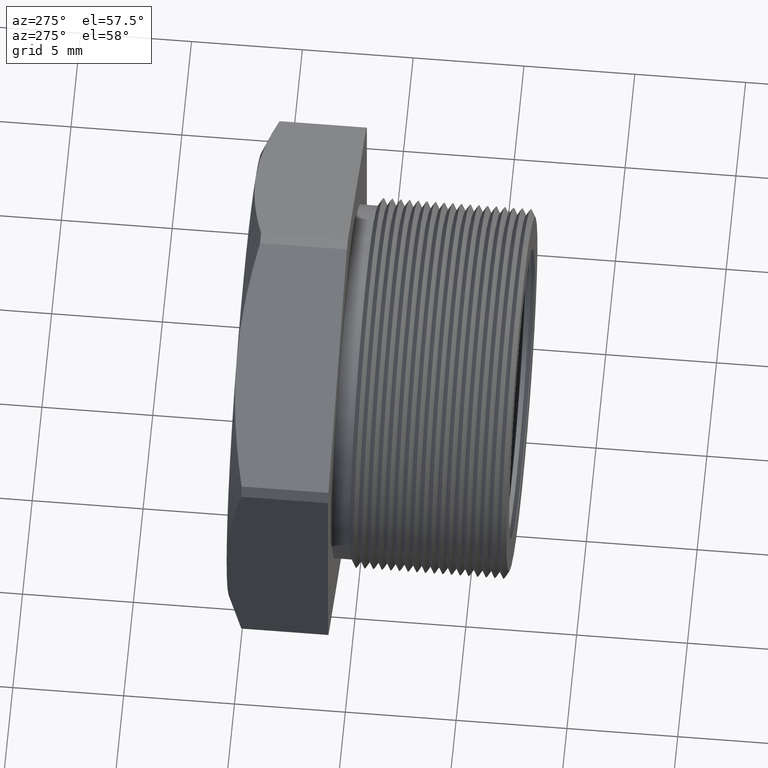
[diagram: clean part render]
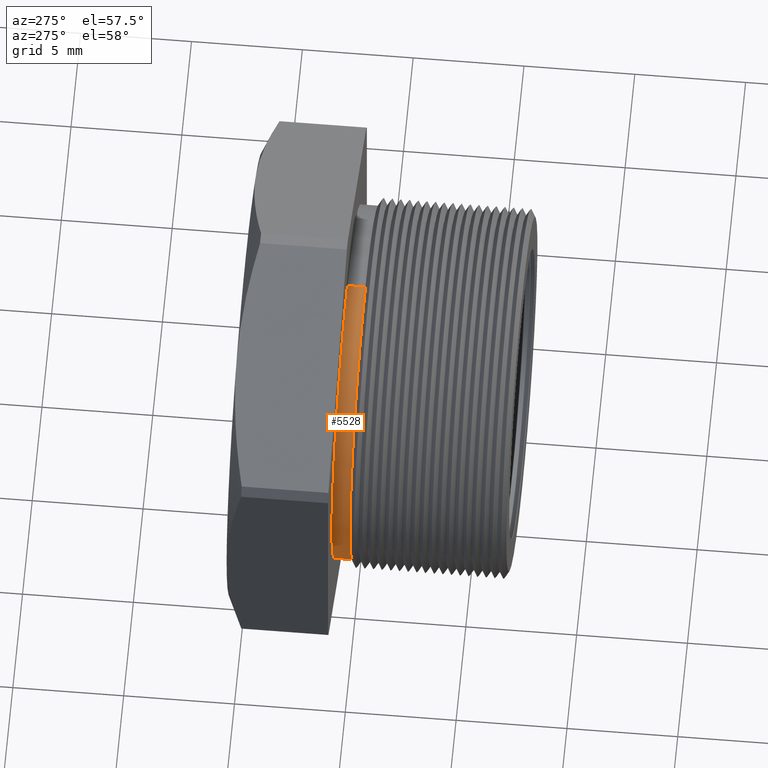
[diagram: same view with one face highlighted and labeled with its STEP entity id]
A machine part, auxiliary view. The second image highlights one B-rep face of the part: STEP entity #5528.
In plain terms, the highlighted cylindrical surface (partial cylindrical patch) has radius 8.001 mm, axis along (-0, -1, -0).
Its self-contained STEP definition (entity closure, byte-faithful):
#765 = CARTESIAN_POINT ( 'NONE',  ( 3.857637417314162700E-017, 0.1955072448100089200, 0.3150000000000000000 ) ) ;
#766 = CARTESIAN_POINT ( 'NONE',  ( 0.0000000000000000000, 0.1955072448100089200, -0.3150000000000000000 ) ) ;
#1821 = CARTESIAN_POINT ( 'NONE',  ( 3.857637417314162700E-017, 0.2275548905829479800, 0.3150000000000000000 ) ) ;
#1826 = CARTESIAN_POINT ( 'NONE',  ( 0.0000000000000000000, 0.2275548905829479800, -0.3150000000000000000 ) ) ;
#1877 = DIRECTION ( 'NONE',  ( -0.0000000000000000000, -1.000000000000000000, -0.0000000000000000000 ) ) ;
#1878 = VECTOR ( 'NONE', #1877, 39.37007874015748100 ) ;
#1879 = CARTESIAN_POINT ( 'NONE',  ( 0.0000000000000000000, 0.0000000000000000000, -0.3150000000000000000 ) ) ;
#1880 = LINE ( 'NONE', #1879, #1878 ) ;
#1881 = DIRECTION ( 'NONE',  ( -0.0000000000000000000, -1.000000000000000000, -0.0000000000000000000 ) ) ;
#1882 = VECTOR ( 'NONE', #1881, 39.37007874015748100 ) ;
#1883 = CARTESIAN_POINT ( 'NONE',  ( 3.857637417314162700E-017, 0.0000000000000000000, 0.3150000000000000000 ) ) ;
#1884 = LINE ( 'NONE', #1883, #1882 ) ;
#2643 = CIRCLE ( 'NONE', #2711, 0.3150000000000000000 ) ;
#2644 = DIRECTION ( 'NONE',  ( 0.0000000000000000000, 0.0000000000000000000, -1.000000000000000000 ) ) ;
#2645 = DIRECTION ( 'NONE',  ( -0.0000000000000000000, -1.000000000000000000, -0.0000000000000000000 ) ) ;
#2646 = CARTESIAN_POINT ( 'NONE',  ( 0.0000000000000000000, 0.0000000000000000000, 0.0000000000000000000 ) ) ;
#2647 = AXIS2_PLACEMENT_3D ( 'NONE', #2646, #2645, #2644 ) ;
#2649 = CYLINDRICAL_SURFACE ( 'NONE', #2647, 0.3150000000000000000 ) ;
#2650 = FACE_OUTER_BOUND ( 'NONE', #5529, .T. ) ;
#2703 = DIRECTION ( 'NONE',  ( 0.0000000000000000000, 0.0000000000000000000, -1.000000000000000000 ) ) ;
#2704 = DIRECTION ( 'NONE',  ( 0.0000000000000000000, -1.000000000000000000, 0.0000000000000000000 ) ) ;
#2705 = CARTESIAN_POINT ( 'NONE',  ( 0.0000000000000000000, 0.1955072448100089200, 0.0000000000000000000 ) ) ;
#2706 = AXIS2_PLACEMENT_3D ( 'NONE', #2705, #2704, #2703 ) ;
#2707 = CIRCLE ( 'NONE', #2706, 0.3150000000000000000 ) ;
#2708 = DIRECTION ( 'NONE',  ( 0.0000000000000000000, 0.0000000000000000000, -1.000000000000000000 ) ) ;
#2709 = DIRECTION ( 'NONE',  ( -0.0000000000000000000, -1.000000000000000000, -0.0000000000000000000 ) ) ;
#2710 = CARTESIAN_POINT ( 'NONE',  ( 0.0000000000000000000, 0.2275548905829479800, 0.0000000000000000000 ) ) ;
#2711 = AXIS2_PLACEMENT_3D ( 'NONE', #2710, #2709, #2708 ) ;
#4593 = VERTEX_POINT ( 'NONE', #766 ) ;
#4595 = VERTEX_POINT ( 'NONE', #765 ) ;
#5107 = VERTEX_POINT ( 'NONE', #1826 ) ;
#5108 = VERTEX_POINT ( 'NONE', #1821 ) ;
#5110 = EDGE_CURVE ( 'NONE', #5108, #4595, #1884, .T. ) ;
#5113 = EDGE_CURVE ( 'NONE', #5107, #4593, #1880, .T. ) ;
#5528 = ADVANCED_FACE ( 'NONE', ( #2650 ), #2649, .T. ) ;
#5529 = EDGE_LOOP ( 'NONE', ( #5530, #5531, #5533, #5534 ) ) ;
#5530 = ORIENTED_EDGE ( 'NONE', *, *, #5110, .F. ) ;
#5531 = ORIENTED_EDGE ( 'NONE', *, *, #5532, .T. ) ;
#5532 = EDGE_CURVE ( 'NONE', #5108, #5107, #2643, .T. ) ;
#5533 = ORIENTED_EDGE ( 'NONE', *, *, #5113, .T. ) ;
#5534 = ORIENTED_EDGE ( 'NONE', *, *, #5535, .F. ) ;
#5535 = EDGE_CURVE ( 'NONE', #4595, #4593, #2707, .T. ) ;